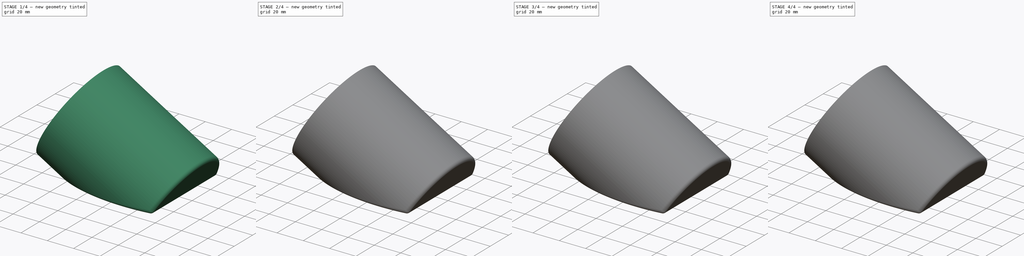
[diagram: build sequence overview — one tinted view per stage of 4, left to right]
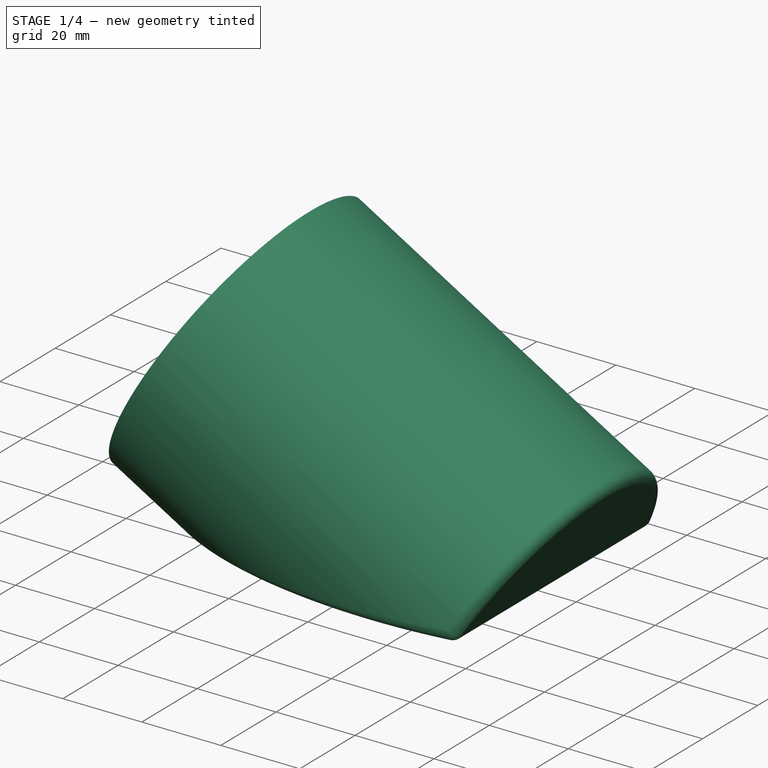
[diagram: stage 1 of 4 — iso view after this stage's code; geometry added in this stage tinted green]
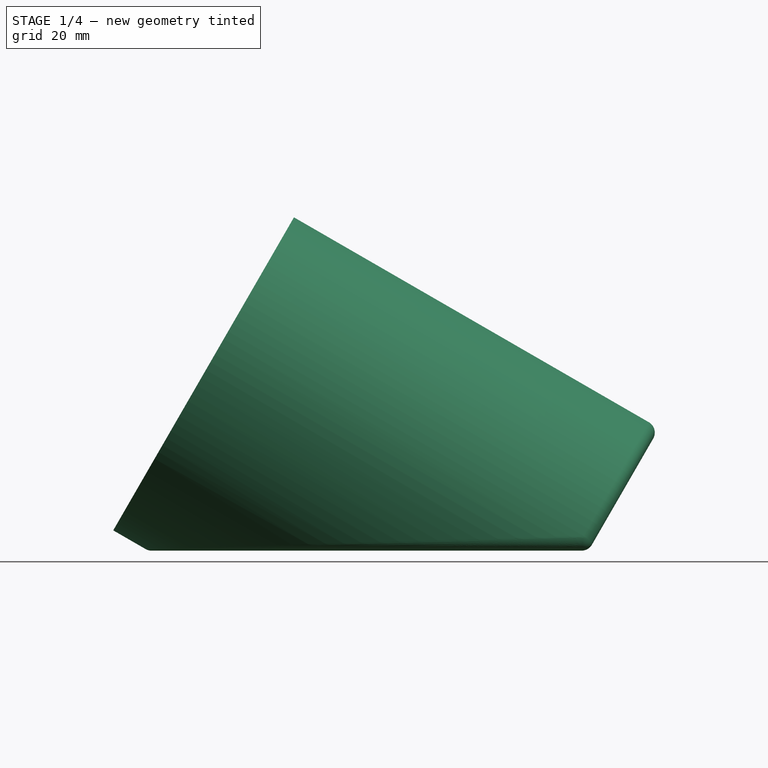
[diagram: stage 1 of 4 — front view after this stage's code; geometry added in this stage tinted green]
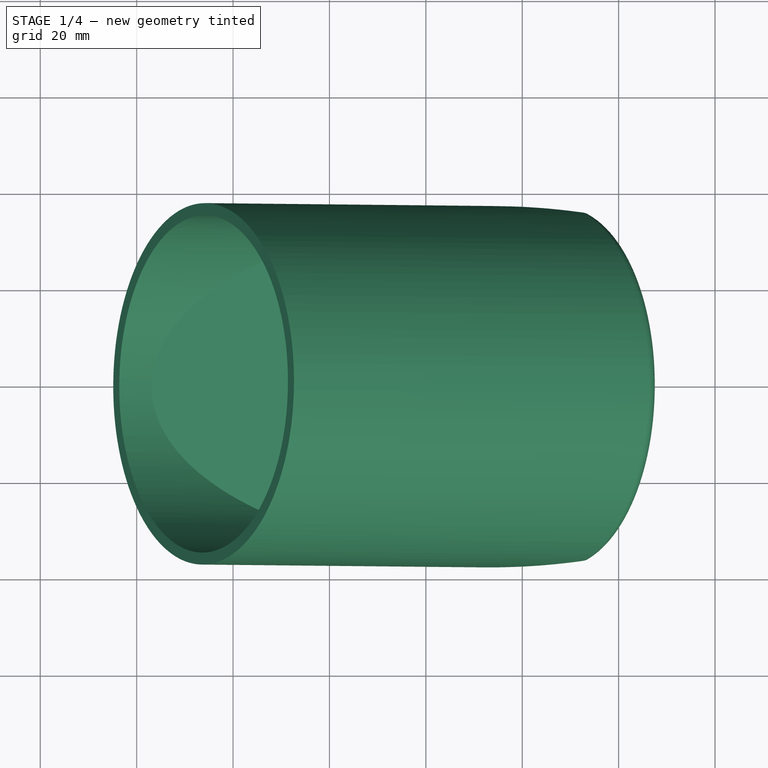
[diagram: stage 1 of 4 — top view after this stage's code; geometry added in this stage tinted green]
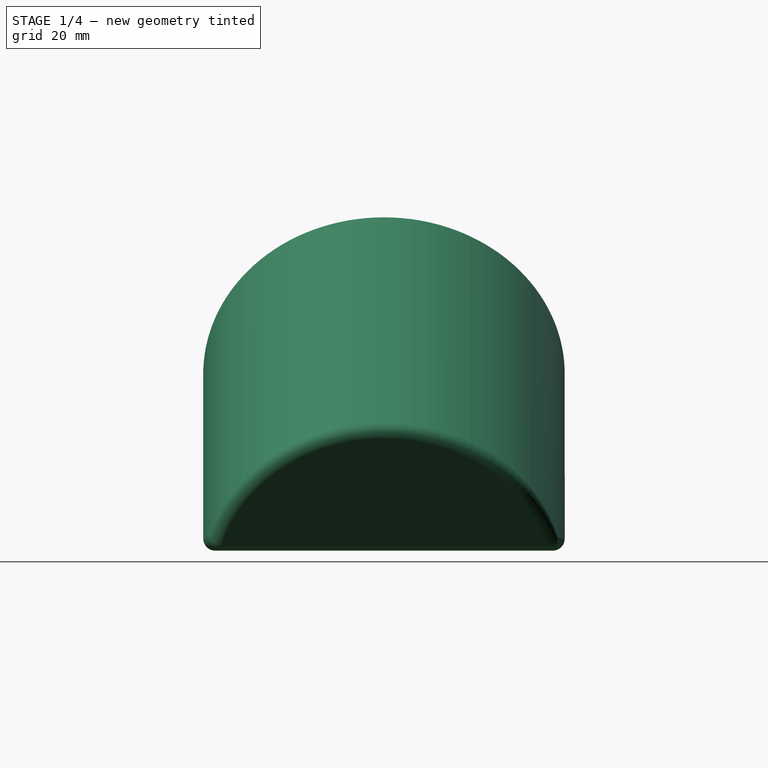
[diagram: stage 1 of 4 — right view after this stage's code; geometry added in this stage tinted green]
FCSTD DOCUMENT  (FreeCAD 0.19R22284 (Git))
Label: RegenSensor-Gehäuse
License: All rights reserved
LicenseURL: http://en.wikipedia.org/wiki/All_rights_reserved
objects: Sketcher::SketchObject×7, PartDesign::Pocket×4, PartDesign::Chamfer×3, PartDesign::Pad×2, PartDesign::Line×1, PartDesign::Revolution×1, PartDesign::Thickness×1, PartDesign::Body×1
note: 31 computed .brp shape members not serialized (recipe doc carries the construction recipe); baked Part::Feature solids carry a one-line shape summary decoded from their .brp

FEATURE [Sketcher::SketchObject] Sketch  label="Zylinder"
  MapMode = 5
  Placement = pos=(0,0,0) rot=(1,0,0;1.5708rad)
  Support = -> [XZ_Plane]
  sketch-geometry (4):
    g0: LineSegment StartX=-48.6122 StartY=64.5 StartZ=0 EndX=25 EndY=22 EndZ=0
    g1: LineSegment StartX=25 StartY=22 StartZ=0 EndX=7.5 EndY=-8.31089 EndZ=0
    g2: LineSegment StartX=7.5 StartY=-8.31089 StartZ=0 EndX=-66.1122 EndY=34.1891 EndZ=0
    g3: LineSegment StartX=-66.1122 StartY=34.1891 StartZ=0 EndX=-48.6122 EndY=64.5 EndZ=0
  constraints (12):
    c: Coincident(g0,g1)
    c: Coincident(g1,g2)
    c: Coincident(g2,g3)
    c: Coincident(g3,g0)
    c: Angle(g-1,g1) = 1.0472
    c: Angle(g1,g2) = 1.5708
    c: Angle(g2,g3) = 1.5708
    c: Angle(g3,g0) = 1.5708
    c: Distance(g0) = 85
    c: Distance(g1) = 35
    c: DistanceX(g-1,g0) = 25
    c: DistanceY(g-1,g0) = 22
FEATURE [PartDesign::Line] DatumLine
  AttacherType = Attacher::AttachEngineLine
  Length = 20
  MapMode = 29
  Placement = pos=(-1.72372,7e-16,-2.98557) rot=(0.447214,-0.447214,-0.774597;1.82348rad)
  ResizeMode = 0
  Support = -> [Sketch]
FEATURE [PartDesign::Revolution] Revolution  label="Revolution - Zylinder"
  Angle = 360
  Axis = (-0.866025,2e-16,0.5)
  Base = (-1.72372,-7e-16,-2.98557)
  Placement = pos=(0,0,0) rot=(1,0,0;1.5708rad)
  Profile = -> Sketch
  ReferenceAxis = -> DatumLine
FEATURE [Sketcher::SketchObject] Sketch001  label="Schnitt"
  MapMode = 5
  Placement = pos=(0,0,0) rot=(1,0,0;1.5708rad)
  Support = -> [XZ_Plane]
  sketch-geometry (4):
    g0: LineSegment StartX=-110 StartY=-45 StartZ=0 EndX=60 EndY=-45 EndZ=0
    g1: LineSegment StartX=60 StartY=-45 StartZ=0 EndX=60 EndY=0 EndZ=0
    g2: LineSegment StartX=60 StartY=0 StartZ=0 EndX=-110 EndY=0 EndZ=0
    g3: LineSegment StartX=-110 StartY=0 StartZ=0 EndX=-110 EndY=-45 EndZ=0
  constraints (12):
    c: Coincident(g0,g1)
    c: Coincident(g1,g2)
    c: Coincident(g2,g3)
    c: Coincident(g3,g0)
    c: Horizontal(g0)
    c: Horizontal(g2)
    c: Vertical(g1)
    c: Vertical(g3)
    c: DistanceY(g1,g-1) = 0
    c: DistanceY(g3,g3) = 45
    c: DistanceX(g0,g0) = 170
    c: DistanceX(g-1,g1) = 60
FEATURE [PartDesign::Pocket] Pocket  label="Pocket - Schnitt"
  BaseFeature = -> Revolution
  Length = 100
  Length2 = 100
  Midplane = true
  Placement = pos=(0,0,0) rot=(1,0,0;1.5708rad)
  Profile = -> Sketch001
  Type = 0
FEATURE [PartDesign::Thickness] Thickness  label="Thickness - Aushöhlung"
  Base = -> Pocket [Face4]
  BaseFeature = -> Pocket
  Intersection = false
  Join = 0
  Mode = 1
  SupportTransform = false
  Value = 2.5
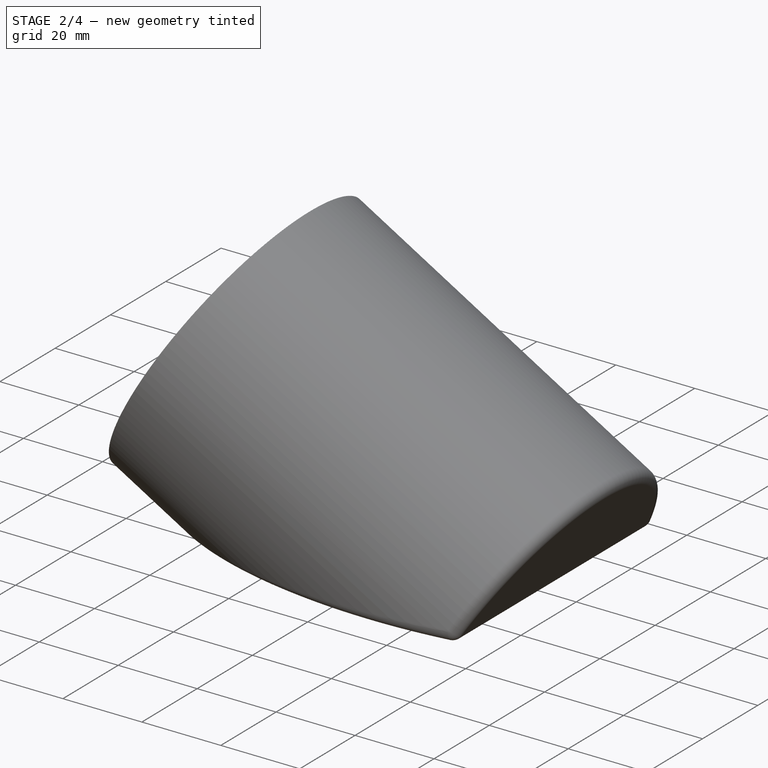
[diagram: stage 2 of 4 — iso view after this stage's code; geometry added in this stage tinted green]
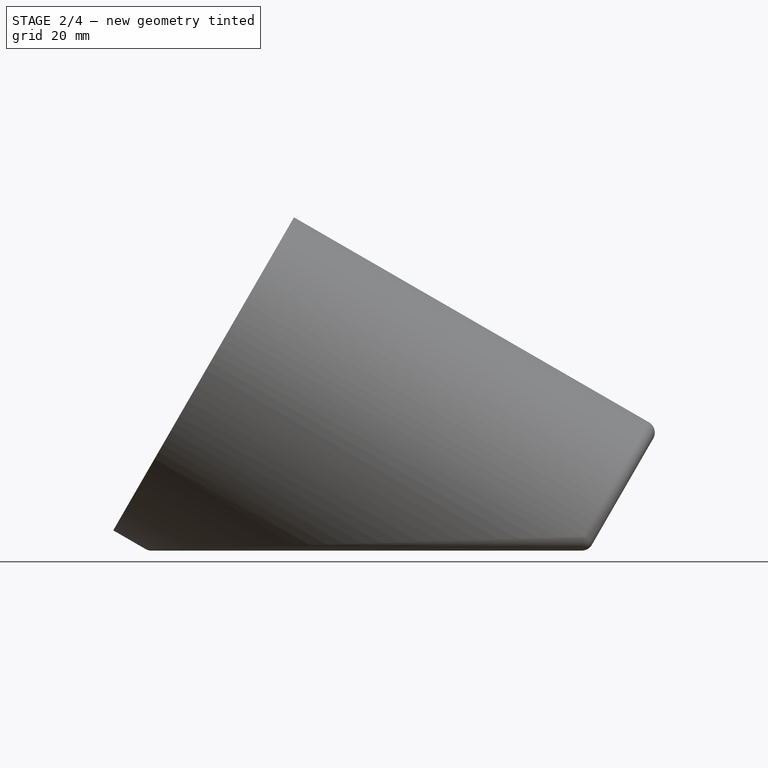
[diagram: stage 2 of 4 — front view after this stage's code; geometry added in this stage tinted green]
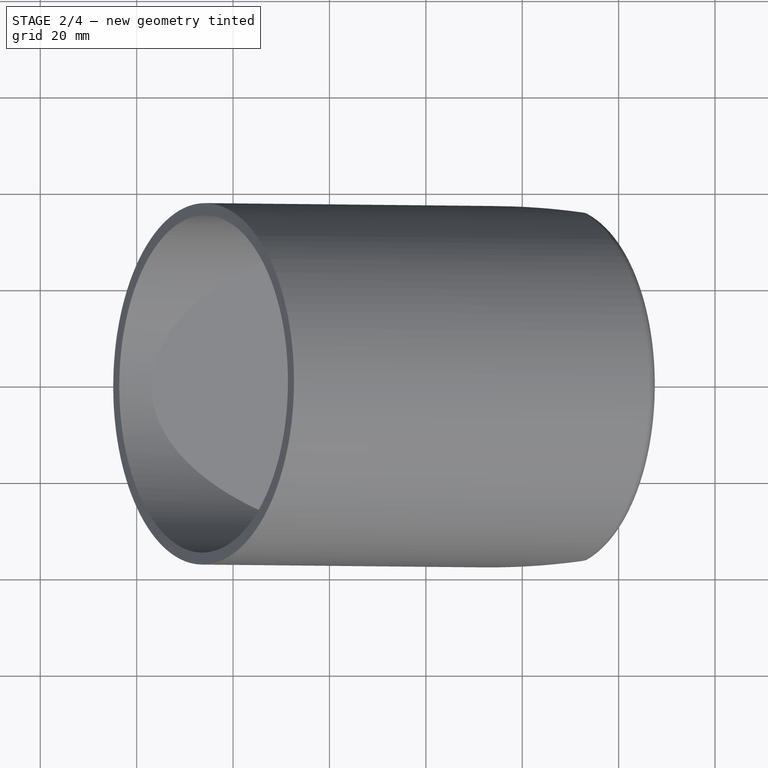
[diagram: stage 2 of 4 — top view after this stage's code; geometry added in this stage tinted green]
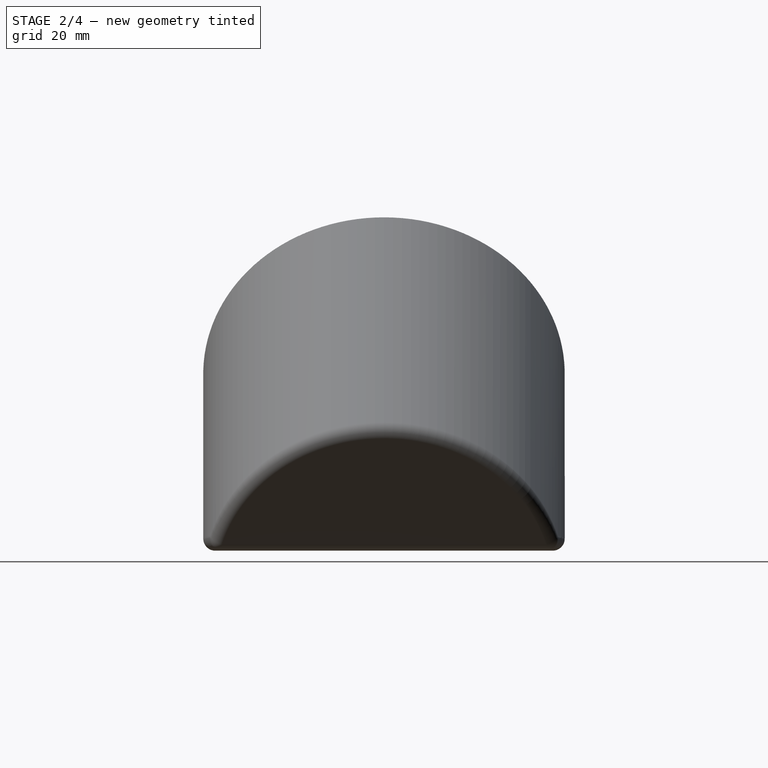
[diagram: stage 2 of 4 — right view after this stage's code; geometry added in this stage tinted green]
FEATURE [Sketcher::SketchObject] Sketch002  label="Sensor-Sockel"
  ExternalGeometry = -> [Thickness]
  MapMode = 5
  Placement = pos=(0,0,2e-16) rot=(0,0,1;0rad)
  Support = -> [Thickness]
  sketch-geometry (4):
    g0: LineSegment StartX=-48.5366 StartY=21.5 StartZ=0 EndX=8.46336 EndY=21.5 EndZ=0
    g1: LineSegment StartX=8.46336 StartY=21.5 StartZ=0 EndX=8.46336 EndY=-21.5 EndZ=0
    g2: LineSegment StartX=8.46336 StartY=-21.5 StartZ=0 EndX=-48.5366 EndY=-21.5 EndZ=0
    g3: LineSegment StartX=-48.5366 StartY=-21.5 StartZ=0 EndX=-48.5366 EndY=21.5 EndZ=0
  constraints (11):
    c: Coincident(g0,g1)
    c: Coincident(g1,g2)
    c: Coincident(g2,g3)
    c: Coincident(g3,g0)
    c: Horizontal(g0)
    c: Horizontal(g2)
    c: Vertical(g1)
    c: DistanceX(g0,g0) = 57
    c: DistanceY(g3,g3) = 43
    c: Symmetric(g0,g2,g-1)
    c: DistanceX(g0,g-3) = 6
FEATURE [PartDesign::Pad] Pad  label="Pad - Sockel"
  BaseFeature = -> Thickness
  Length = 1.5
  Length2 = 100
  Profile = -> Sketch002
  Type = 0
FEATURE [Sketcher::SketchObject] Sketch003  label="Fenster"
  ExternalGeometry = -> [Pad]
  MapMode = 5
  Placement = pos=(0,1e-15,1.5) rot=(0,0,1;0rad)
  Support = -> [Pad]
  sketch-geometry (4):
    g0: LineSegment StartX=-38.5366 StartY=15 StartZ=0 EndX=3.46336 EndY=15 EndZ=0
    g1: LineSegment StartX=3.46336 StartY=15 StartZ=0 EndX=3.46336 EndY=-15 EndZ=0
    g2: LineSegment StartX=3.46336 StartY=-15 StartZ=0 EndX=-38.5366 EndY=-15 EndZ=0
    g3: LineSegment StartX=-38.5366 StartY=-15 StartZ=0 EndX=-38.5366 EndY=15 EndZ=0
  constraints (11):
    c: Coincident(g0,g1)
    c: Coincident(g1,g2)
    c: Coincident(g2,g3)
    c: Coincident(g3,g0)
    c: Horizontal(g0)
    c: Horizontal(g2)
    c: Vertical(g1)
    c: Symmetric(g0,g2,g-1)
    c: DistanceY(g3,g3) = 30
    c: DistanceX(g0,g0) = 42
    c: DistanceX(g0,g-3) = 5
FEATURE [PartDesign::Pocket] Pocket001  label="Pocket - Fenster"
  BaseFeature = -> Pad
  Length = 5
  Length2 = 100
  Profile = -> Sketch003
  Type = 0
FEATURE [Sketcher::SketchObject] Sketch004  label="Sensor-Ausspahrung"
  ExternalGeometry = -> [Pocket001]
  MapMode = 5
  Placement = pos=(0,1e-15,1.5) rot=(0,0,1;0rad)
  Support = -> [Pocket001]
  sketch-geometry (4):
    g0: LineSegment StartX=-47.5366 StartY=20.5 StartZ=0 EndX=7.46336 EndY=20.5 EndZ=0
    g1: LineSegment StartX=7.46336 StartY=20.5 StartZ=0 EndX=7.46336 EndY=-20.5 EndZ=0
    g2: LineSegment StartX=7.46336 StartY=-20.5 StartZ=0 EndX=-47.5366 EndY=-20.5 EndZ=0
    g3: LineSegment StartX=-47.5366 StartY=-20.5 StartZ=0 EndX=-47.5366 EndY=20.5 EndZ=0
  constraints (11):
    c: Coincident(g0,g1)
    c: Coincident(g1,g2)
    c: Coincident(g2,g3)
    c: Coincident(g3,g0)
    c: Horizontal(g0)
    c: Horizontal(g2)
    c: Vertical(g1)
    c: DistanceX(g0,g0) = 55
    c: DistanceY(g3,g3) = 41
    c: Symmetric(g0,g2,g-1)
    c: DistanceX(g0,g-3) = 1
FEATURE [PartDesign::Pocket] Pocket002  label="Pocket - Sensor-Ausspahrung"
  BaseFeature = -> Pocket001
  Length = 2
  Length2 = 100
  Profile = -> Sketch004
  Type = 0
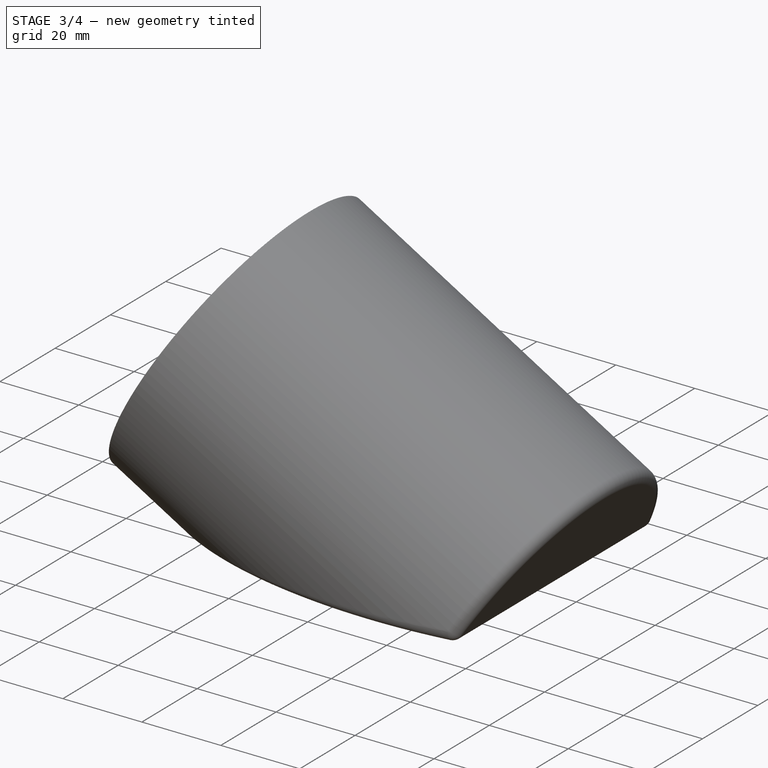
[diagram: stage 3 of 4 — iso view after this stage's code; geometry added in this stage tinted green]
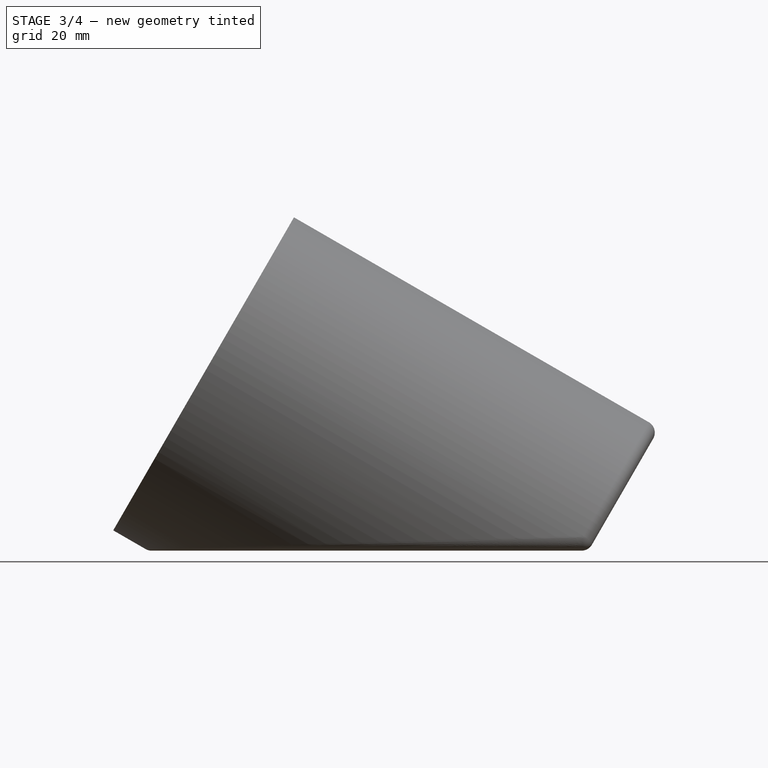
[diagram: stage 3 of 4 — front view after this stage's code; geometry added in this stage tinted green]
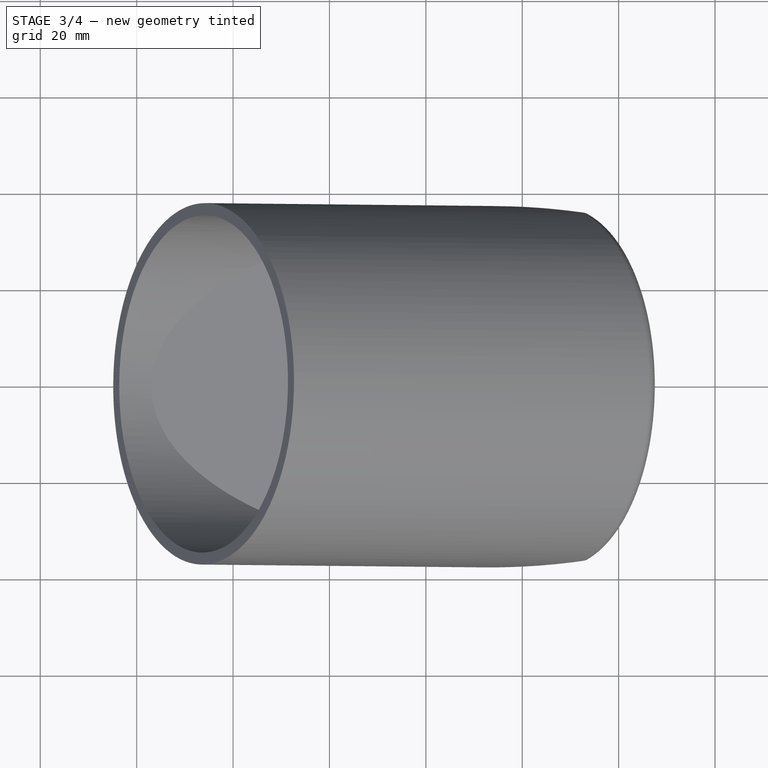
[diagram: stage 3 of 4 — top view after this stage's code; geometry added in this stage tinted green]
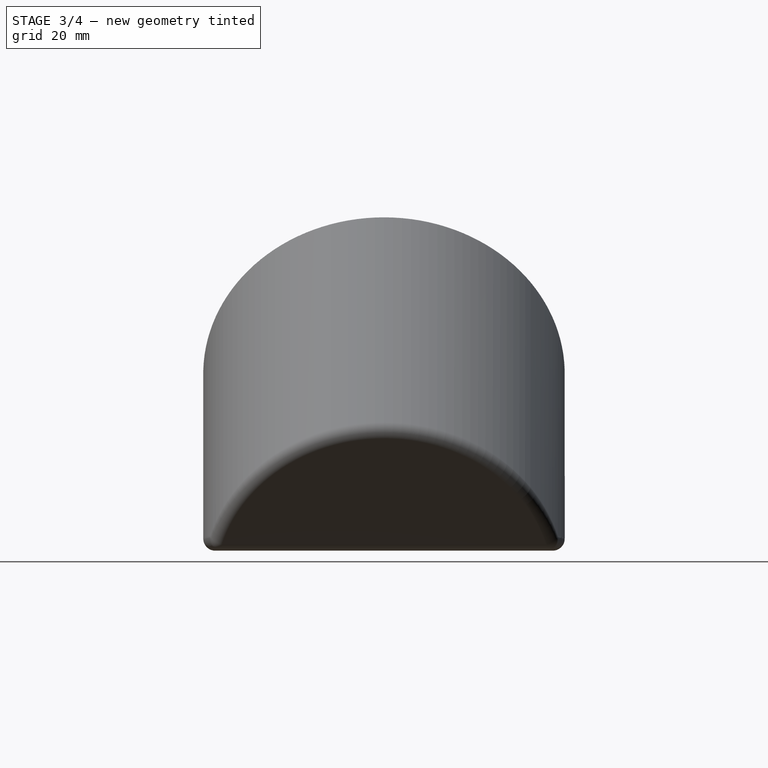
[diagram: stage 3 of 4 — right view after this stage's code; geometry added in this stage tinted green]
FEATURE [Sketcher::SketchObject] Sketch005  label="Sensor Stützen"
  ExternalGeometry = -> [Pocket002]
  MapMode = 5
  Placement = pos=(0,-3e-16,-0.5) rot=(0,0,1;0rad)
  Support = -> [Pocket002]
  sketch-geometry (4):
    g0: Circle CenterX=-44.5366 CenterY=17.5 CenterZ=0 NormalX=0 NormalY=0 NormalZ=1 AngleXU=0 Radius=0.8
    g1: Circle CenterX=4.46336 CenterY=17.5 CenterZ=0 NormalX=0 NormalY=0 NormalZ=1 AngleXU=0 Radius=0.8
    g2: Circle CenterX=-44.5366 CenterY=-17.5 CenterZ=0 NormalX=0 NormalY=0 NormalZ=1 AngleXU=0 Radius=0.8
    g3: Circle CenterX=4.46336 CenterY=-17.5 CenterZ=0 NormalX=0 NormalY=0 NormalZ=1 AngleXU=0 Radius=0.8
  constraints (10):
    c: Radius(g0) = 0.8
    c: Equal(g0,g2)
    c: Equal(g0,g3)
    c: Equal(g0,g1)
    c: Symmetric(g0,g2,g-1)
    c: Symmetric(g3,g1,g-1)
    c: DistanceY(g2,g0) = 35
    c: DistanceX(g0,g1) = 49
    c: Horizontal(g3,g2)
    c: DistanceX(g1,g-3) = 3
FEATURE [PartDesign::Pad] Pad001  label="Pad - Sensor Stützen"
  BaseFeature = -> Pocket002
  Length = 2
  Length2 = 100
  Profile = -> Sketch005
  Type = 0
FEATURE [Sketcher::SketchObject] Sketch006  label="Lötstelle Ausspahrung"
  ExternalGeometry = -> [Pad001]
  MapMode = 5
  Placement = pos=(0,-3e-16,-0.5) rot=(0,0,1;0rad)
  Support = -> [Pad001]
  sketch-geometry (4):
    g0: LineSegment StartX=-46.5366 StartY=2.25 StartZ=0 EndX=-42.5366 EndY=2.25 EndZ=0
    g1: LineSegment StartX=-42.5366 StartY=2.25 StartZ=0 EndX=-42.5366 EndY=-2.25 EndZ=0
    g2: LineSegment StartX=-42.5366 StartY=-2.25 StartZ=0 EndX=-46.5366 EndY=-2.25 EndZ=0
    g3: LineSegment StartX=-46.5366 StartY=-2.25 StartZ=0 EndX=-46.5366 EndY=2.25 EndZ=0
  constraints (11):
    c: Coincident(g0,g1)
    c: Coincident(g1,g2)
    c: Coincident(g2,g3)
    c: Coincident(g3,g0)
    c: Horizontal(g0)
    c: Horizontal(g2)
    c: Vertical(g3)
    c: DistanceX(g0,g0) = 4
    c: DistanceY(g1,g1) = 4.5
    c: Symmetric(g0,g1,g-1)
    c: DistanceX(g-3,g0) = 1
FEATURE [PartDesign::Pocket] Pocket003  label="Pocket - Lötstelle Ausspahrung"
  BaseFeature = -> Pad001
  Length = 1.2
  Length2 = 100
  Profile = -> Sketch006
  Type = 0
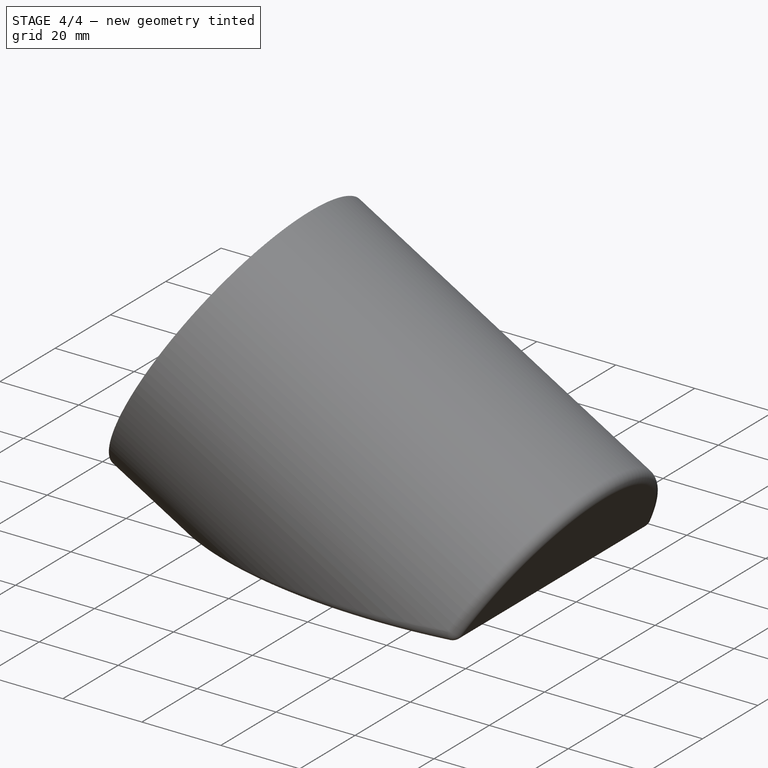
[diagram: stage 4 of 4 — iso view after this stage's code; geometry added in this stage tinted green]
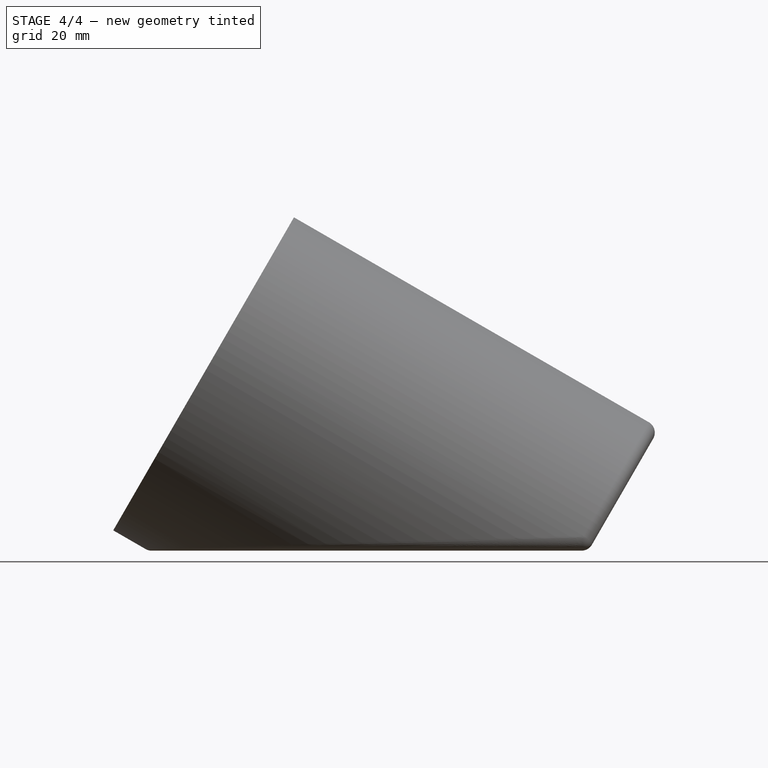
[diagram: stage 4 of 4 — front view after this stage's code; geometry added in this stage tinted green]
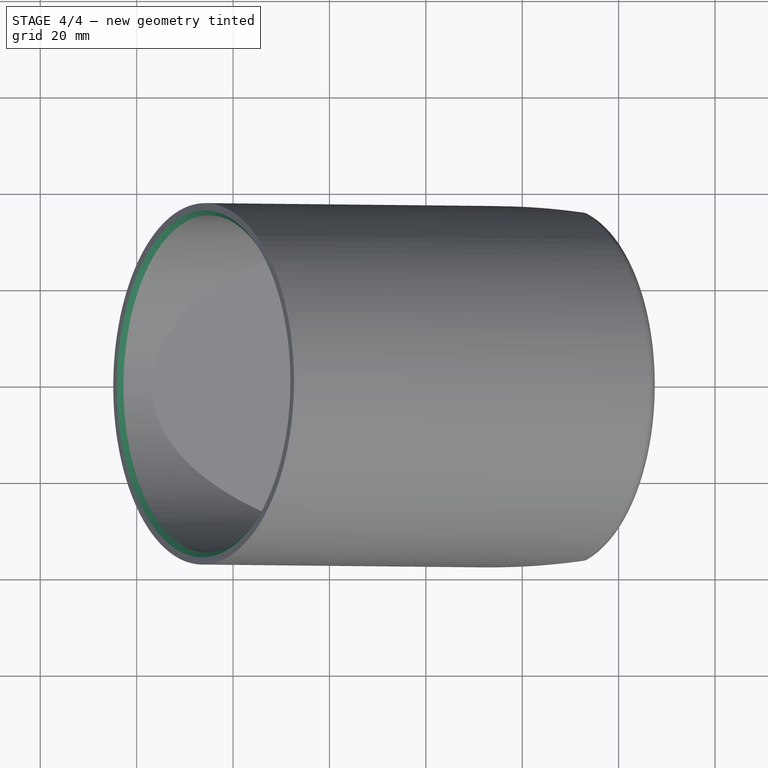
[diagram: stage 4 of 4 — top view after this stage's code; geometry added in this stage tinted green]
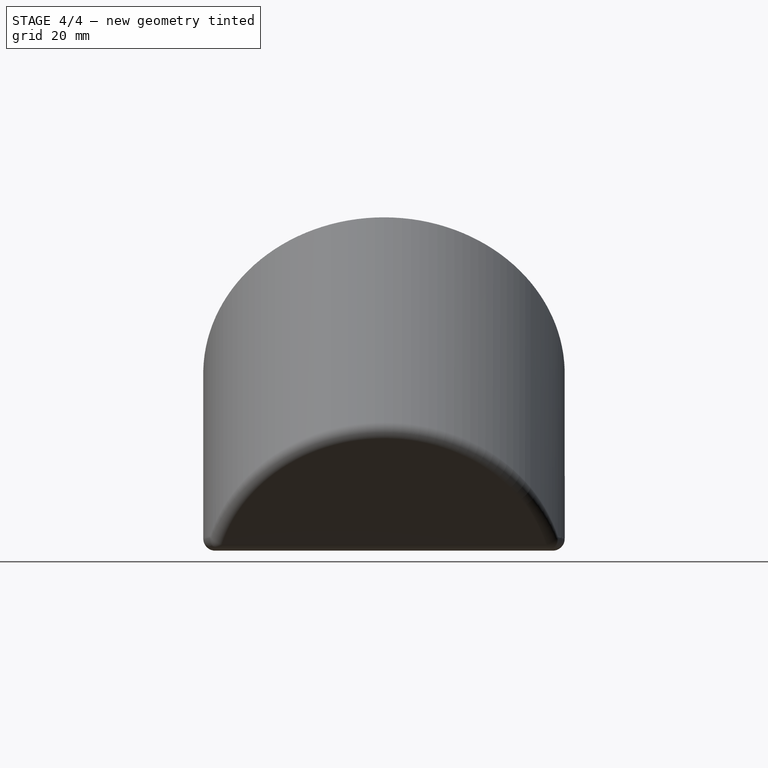
[diagram: stage 4 of 4 — right view after this stage's code; geometry added in this stage tinted green]
FEATURE [PartDesign::Chamfer] Chamfer  label="Chamfer - Schrägung unten"
  Angle = 25
  Base = -> Pocket003 [Edge8]
  BaseFeature = -> Pocket003
  ChamferType = 2
  FlipDirection = false
  Size = 4
  Size2 = 1
  SupportTransform = false
FEATURE [PartDesign::Chamfer] Chamfer001  label="Chamfer - Schrägung"
  Angle = 45
  Base = -> Chamfer [Edge6,Edge4,Edge2]
  BaseFeature = -> Chamfer
  ChamferType = 0
  FlipDirection = false
  Size = 1
  Size2 = 1
  SupportTransform = false
FEATURE [PartDesign::Chamfer] Chamfer002
  Angle = 45
  Base = -> Chamfer001 [Edge60]
  BaseFeature = -> Chamfer001
  ChamferType = 0
  FlipDirection = false
  Size = 1
  Size2 = 1
  SupportTransform = false
FEATURE [PartDesign::Body] Body  label="Deckel"
  Group = -> [Sketch,DatumLine,Revolution,Sketch001,Pocket,Thickness,Sketch002,Pad,Sketch003,Pocket001,Sketch004,Pocket002,Sketch005,Pad001,Sketch006,Pocket003,Chamfer,Chamfer001,Chamfer002]
  Origin = -> Origin
  Tip = -> Chamfer002
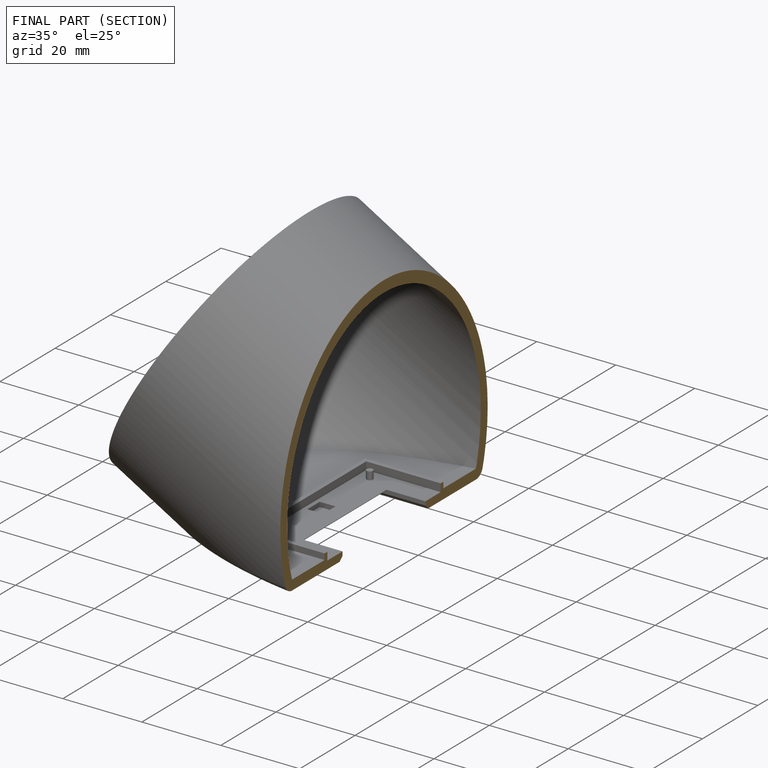
[diagram: finished part — half-section view (interior)]
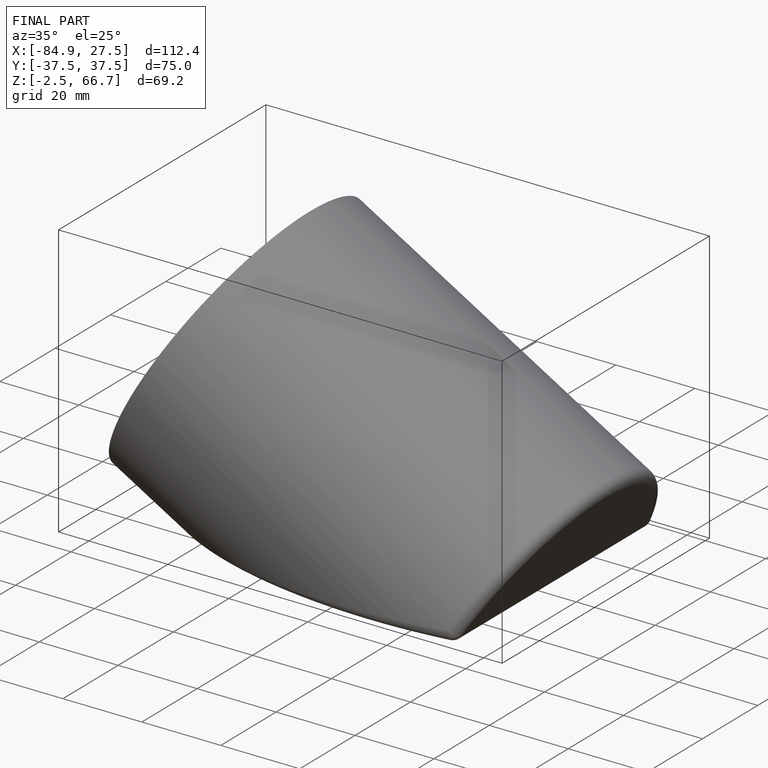
[diagram: finished part — iso view with bounding-box wireframe]
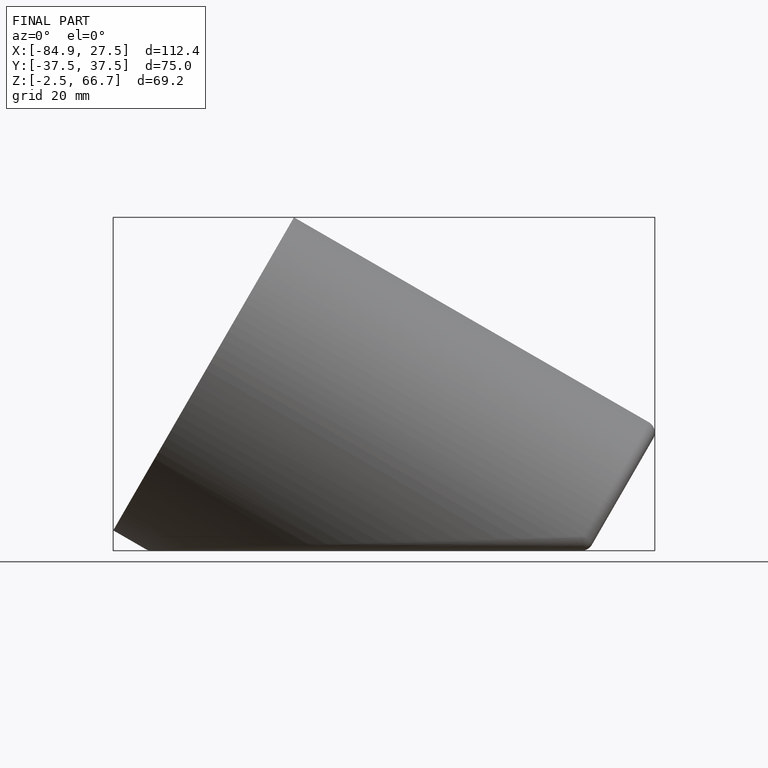
[diagram: finished part — front view with bounding-box wireframe]
